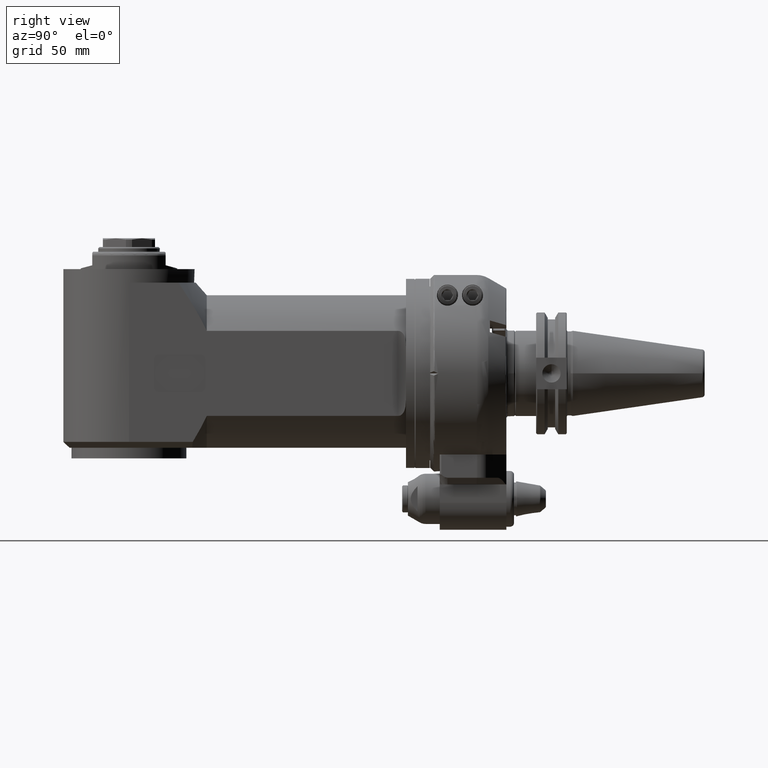
[diagram: clean part render]
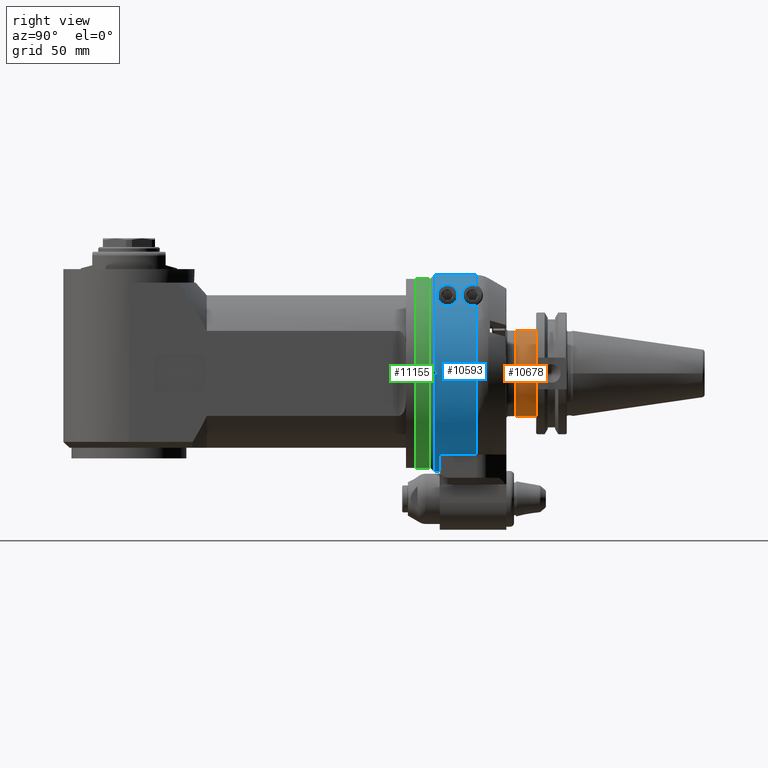
[diagram: same view with three faces highlighted in distinct colors, each labeled with its STEP entity id]
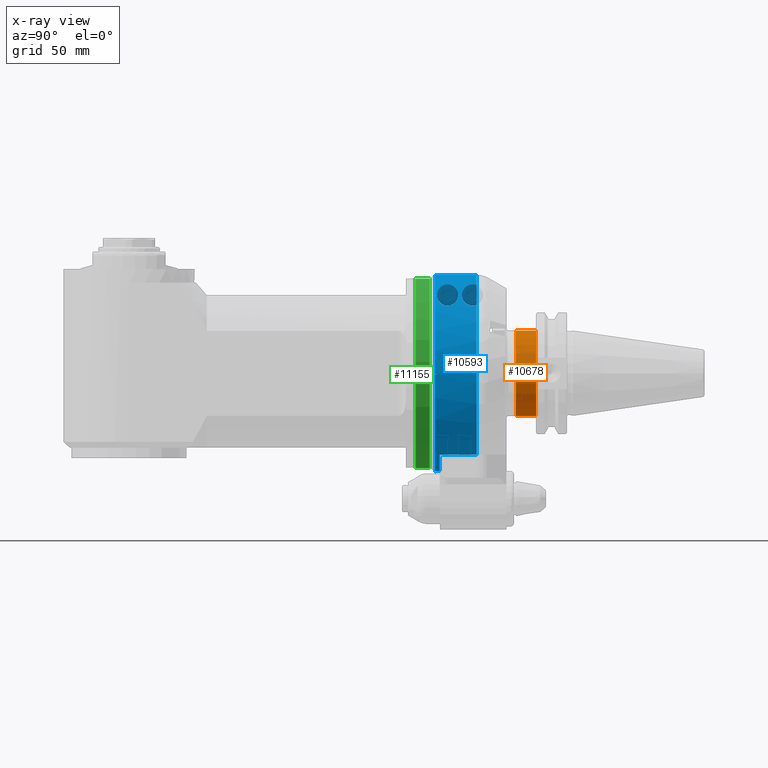
[diagram: x-ray of the same camera — body ghosted, the three highlighted faces saturated]
A machine part, right view with three faces highlighted in distinct colors.
The next image is the same camera in x-ray (body ghosted, the three faces saturated) — at least one of them is partly hidden behind the body in this view.
Their STEP definitions:

[orange] entity #10678 — the highlighted cylindrical surface (bore or boss wall) has radius 22.225 mm, axis along (0, -1, 0).
#951=CYLINDRICAL_SURFACE('',#11902,22.225);
#1212=FACE_OUTER_BOUND('',#1897,.T.);
#1897=EDGE_LOOP('',(#7784,#7785,#7786,#7787,#7788));
#2673=CIRCLE('',#11900,22.225);
#2674=CIRCLE('',#11901,22.225);
#2675=CIRCLE('',#11903,22.225);
#3324=LINE('',#17456,#4027);
#4027=VECTOR('',#13615,22.225);
#4804=VERTEX_POINT('',#17449);
#4805=VERTEX_POINT('',#17450);
#4806=VERTEX_POINT('',#17455);
#5933=EDGE_CURVE('',#4804,#4805,#2673,.T.);
#5935=EDGE_CURVE('',#4805,#4804,#2674,.T.);
#5936=EDGE_CURVE('',#4804,#4806,#3324,.T.);
#5937=EDGE_CURVE('',#4806,#4806,#2675,.T.);
#7784=ORIENTED_EDGE('',*,*,#5933,.F.);
#7785=ORIENTED_EDGE('',*,*,#5936,.T.);
#7786=ORIENTED_EDGE('',*,*,#5937,.F.);
#7787=ORIENTED_EDGE('',*,*,#5936,.F.);
#7788=ORIENTED_EDGE('',*,*,#5935,.F.);
#10678=ADVANCED_FACE('',(#1212),#951,.T.);
#11900=AXIS2_PLACEMENT_3D('',#17451,#13608,#13609);
#11901=AXIS2_PLACEMENT_3D('',#17453,#13611,#13612);
#11902=AXIS2_PLACEMENT_3D('',#17454,#13613,#13614);
#11903=AXIS2_PLACEMENT_3D('',#17457,#13616,#13617);
#13608=DIRECTION('center_axis',(-1.,0.,0.));
#13609=DIRECTION('ref_axis',(0.,-1.,0.));
#13611=DIRECTION('center_axis',(-1.,0.,0.));
#13612=DIRECTION('ref_axis',(0.,-1.,0.));
#13613=DIRECTION('center_axis',(-1.,0.,0.));
#13614=DIRECTION('ref_axis',(0.,1.,0.));
#13615=DIRECTION('',(1.,0.,0.));
#13616=DIRECTION('center_axis',(1.,0.,0.));
#13617=DIRECTION('ref_axis',(0.,1.,0.));
#17449=CARTESIAN_POINT('',(12.5,-22.225,0.));
#17450=CARTESIAN_POINT('',(12.5,22.225,2.72177751110499E-15));
#17451=CARTESIAN_POINT('Origin',(12.5,0.,0.));
#17453=CARTESIAN_POINT('Origin',(12.5,0.,0.));
#17454=CARTESIAN_POINT('Origin',(17.475,0.,0.));
#17455=CARTESIAN_POINT('',(22.95,-22.225,2.72177751110499E-15));
#17456=CARTESIAN_POINT('',(17.475,-22.225,2.72177751110499E-15));
#17457=CARTESIAN_POINT('Origin',(22.95,0.,0.));

[blue] entity #10593 — the highlighted cylindrical surface (partial cylindrical patch) has radius 51 mm, axis along (0, -1, 0).
#256=ELLIPSE('',#11736,144.249783362042,51.);
#257=ELLIPSE('',#11737,144.249783362042,51.);
#309=FACE_BOUND('',#1799,.T.);
#538=B_SPLINE_CURVE_WITH_KNOTS('',3,(#16863,#16864,#16865,#16866,#16867,
#16868),.UNSPECIFIED.,.F.,.F.,(4,2,4),(-0.220144328873593,-0.201175489980687,
0.),.UNSPECIFIED.);
#539=B_SPLINE_CURVE_WITH_KNOTS('',3,(#16869,#16870,#16871,#16872,#16873,
#16874,#16875,#16876,#16877,#16878,#16879,#16880,#16881,#16882,#16883,#16884,
#16885,#16886,#16887,#16888,#16889,#16890,#16891,#16892,#16893,#16894),
 .UNSPECIFIED.,.F.,.F.,(4,2,2,2,2,2,2,2,2,2,2,2,4),(0.,0.201175489980687,
0.402350979961374,0.726790310303929,1.05122964064648,1.44743687444551,1.84364410824453,
2.06341028648597,2.17329337560669,2.28317646472742,2.39305955384814,2.50294264296886,
2.52975105249028),.UNSPECIFIED.);
#540=B_SPLINE_CURVE_WITH_KNOTS('',3,(#16898,#16899,#16900,#16901,#16902,
#16903,#16904,#16905,#16906,#16907,#16908,#16909,#16910,#16911,#16912,#16913,
#16914,#16915,#16916,#16917,#16918,#16919,#16920),.UNSPECIFIED.,.F.,.F.,
(4,2,2,2,2,3,2,2,2,2,4),(-1.23194682408093,-0.835739590281914,-0.439532356482893,
-0.219766178241447,-0.109883089120723,0.,0.109883089120723,0.219766178241446,
0.439532356482894,0.835739590281914,1.23194682408093),.UNSPECIFIED.);
#541=B_SPLINE_CURVE_WITH_KNOTS('',3,(#16921,#16922,#16923,#16924,#16925,
#16926,#16927,#16928,#16929,#16930,#16931,#16932,#16933,#16934,#16935,#16936,
#16937,#16938),.UNSPECIFIED.,.F.,.F.,(4,2,2,2,2,2,2,2,4),(1.23194682408093,
1.55638615442349,1.88082548476604,2.08200097474673,2.28317646472742,2.4843519547081,
2.68552744468879,3.00996677503135,3.3344061053739),.UNSPECIFIED.);
#924=CYLINDRICAL_SURFACE('',#11734,51.);
#1127=FACE_OUTER_BOUND('',#1798,.T.);
#1798=EDGE_LOOP('',(#7371,#7372,#7373,#7374,#7375,#7376,#7377,#7378,#7379,
#7380,#7381,#7382,#7383,#7384));
#1799=EDGE_LOOP('',(#7385,#7386));
#2595=CIRCLE('',#11732,51.);
#2596=CIRCLE('',#11733,51.);
#2597=CIRCLE('',#11735,51.);
#2598=CIRCLE('',#11738,51.);
#2599=CIRCLE('',#11739,51.);
#2600=CIRCLE('',#11740,51.);
#3227=LINE('',#16589,#3930);
#3229=LINE('',#16593,#3932);
#3246=LINE('',#16859,#3949);
#3247=LINE('',#16895,#3950);
#3930=VECTOR('',#13092,19.16025403784);
#3932=VECTOR('',#13094,19.16025403784);
#3949=VECTOR('',#13209,21.74606325158);
#3950=VECTOR('',#13214,21.74606856517);
#4638=VERTEX_POINT('',#16575);
#4639=VERTEX_POINT('',#16588);
#4640=VERTEX_POINT('',#16590);
#4641=VERTEX_POINT('',#16592);
#4684=VERTEX_POINT('',#16815);
#4685=VERTEX_POINT('',#16824);
#4686=VERTEX_POINT('',#16826);
#4687=VERTEX_POINT('',#16849);
#4688=VERTEX_POINT('',#16850);
#4689=VERTEX_POINT('',#16852);
#4690=VERTEX_POINT('',#16854);
#4691=VERTEX_POINT('',#16856);
#4692=VERTEX_POINT('',#16858);
#4693=VERTEX_POINT('',#16862);
#4694=VERTEX_POINT('',#16896);
#4695=VERTEX_POINT('',#16897);
#5685=EDGE_CURVE('',#4639,#4638,#3227,.T.);
#5687=EDGE_CURVE('',#4641,#4640,#3229,.T.);
#5746=EDGE_CURVE('',#4684,#4685,#2595,.T.);
#5748=EDGE_CURVE('',#4686,#4638,#2596,.T.);
#5749=EDGE_CURVE('',#4687,#4688,#2597,.T.);
#5750=EDGE_CURVE('',#4689,#4687,#256,.T.);
#5751=EDGE_CURVE('',#4690,#4689,#257,.T.);
#5752=EDGE_CURVE('',#4691,#4690,#2598,.T.);
#5753=EDGE_CURVE('',#4691,#4692,#3246,.T.);
#5754=EDGE_CURVE('',#4641,#4692,#2599,.T.);
#5755=EDGE_CURVE('',#4639,#4640,#2600,.T.);
#5756=EDGE_CURVE('',#4686,#4693,#538,.T.);
#5757=EDGE_CURVE('',#4693,#4685,#539,.T.);
#5758=EDGE_CURVE('',#4684,#4688,#3247,.T.);
#5759=EDGE_CURVE('',#4694,#4695,#540,.T.);
#5760=EDGE_CURVE('',#4695,#4694,#541,.T.);
#7371=ORIENTED_EDGE('',*,*,#5749,.F.);
#7372=ORIENTED_EDGE('',*,*,#5750,.F.);
#7373=ORIENTED_EDGE('',*,*,#5751,.F.);
#7374=ORIENTED_EDGE('',*,*,#5752,.F.);
#7375=ORIENTED_EDGE('',*,*,#5753,.T.);
#7376=ORIENTED_EDGE('',*,*,#5754,.F.);
#7377=ORIENTED_EDGE('',*,*,#5687,.T.);
#7378=ORIENTED_EDGE('',*,*,#5755,.F.);
#7379=ORIENTED_EDGE('',*,*,#5685,.T.);
#7380=ORIENTED_EDGE('',*,*,#5748,.F.);
#7381=ORIENTED_EDGE('',*,*,#5756,.T.);
#7382=ORIENTED_EDGE('',*,*,#5757,.T.);
#7383=ORIENTED_EDGE('',*,*,#5746,.F.);
#7384=ORIENTED_EDGE('',*,*,#5758,.T.);
#7385=ORIENTED_EDGE('',*,*,#5759,.T.);
#7386=ORIENTED_EDGE('',*,*,#5760,.T.);
#10593=ADVANCED_FACE('',(#1127,#309),#924,.T.);
#11732=AXIS2_PLACEMENT_3D('',#16825,#13195,#13196);
#11733=AXIS2_PLACEMENT_3D('',#16847,#13197,#13198);
#11734=AXIS2_PLACEMENT_3D('',#16848,#13199,#13200);
#11735=AXIS2_PLACEMENT_3D('',#16851,#13201,#13202);
#11736=AXIS2_PLACEMENT_3D('',#16853,#13203,#13204);
#11737=AXIS2_PLACEMENT_3D('',#16855,#13205,#13206);
#11738=AXIS2_PLACEMENT_3D('',#16857,#13207,#13208);
#11739=AXIS2_PLACEMENT_3D('',#16860,#13210,#13211);
#11740=AXIS2_PLACEMENT_3D('',#16861,#13212,#13213);
#13092=DIRECTION('',(-1.,0.,0.));
#13094=DIRECTION('',(1.,0.,0.));
#13195=DIRECTION('center_axis',(-1.,0.,0.));
#13196=DIRECTION('ref_axis',(0.,-0.999567380468613,0.0294117647058804));
#13197=DIRECTION('center_axis',(-1.,0.,0.));
#13198=DIRECTION('ref_axis',(0.,-0.694941301235422,0.719066469693323));
#13199=DIRECTION('center_axis',(1.,0.,0.));
#13200=DIRECTION('ref_axis',(0.,1.,1.4663926773559E-10));
#13201=DIRECTION('center_axis',(1.,0.,0.));
#13202=DIRECTION('ref_axis',(0.,-0.0186331132687895,0.999826388474475));
#13203=DIRECTION('center_axis',(0.353553390593307,0.707106781186515,0.612372435695813));
#13204=DIRECTION('ref_axis',(0.935414346693472,-0.267261241912441,-0.23145502494317));
#13205=DIRECTION('center_axis',(0.353553390593307,-0.707106781186515,0.612372435695813));
#13206=DIRECTION('ref_axis',(-0.935414346693472,-0.267261241912441,0.23145502494317));
#13207=DIRECTION('center_axis',(1.,0.,0.));
#13208=DIRECTION('ref_axis',(0.,1.,0.));
#13209=DIRECTION('',(-1.,-1.462479987387E-11,4.970251645951E-10));
#13210=DIRECTION('center_axis',(-1.,0.,0.));
#13211=DIRECTION('ref_axis',(0.,0.823529411764684,-0.567273574176089));
#13212=DIRECTION('center_axis',(-1.,0.,0.));
#13213=DIRECTION('ref_axis',(0.,1.,0.));
#13214=DIRECTION('',(1.,3.747115976057E-11,1.273469652131E-9));
#16575=CARTESIAN_POINT('',(-36.16025403784,42.,28.93095228298));
#16588=CARTESIAN_POINT('',(-17.,42.,28.93095228298));
#16589=CARTESIAN_POINT('',(-17.,42.,28.93095228298));
#16590=CARTESIAN_POINT('',(-17.,42.,-28.93095228298));
#16592=CARTESIAN_POINT('',(-36.16025403784,42.,-28.93095228298));
#16593=CARTESIAN_POINT('',(-36.16025403784,42.,-28.93095228298));
#16815=CARTESIAN_POINT('',(-36.16025403784,-50.9779364046901,1.49999997309681));
#16824=CARTESIAN_POINT('',(-36.16025403784,-45.55799420242,22.92311419183));
#16825=CARTESIAN_POINT('Origin',(-36.16025403784,0.,0.));
#16826=CARTESIAN_POINT('',(-36.16025403784,-35.44200636301,36.67238995436));
#16847=CARTESIAN_POINT('Origin',(-36.16025403784,0.,0.));
#16848=CARTESIAN_POINT('Origin',(-43.,0.,0.));
#16849=CARTESIAN_POINT('',(-14.41421356236,-0.9502887767138,50.9911458122));
#16850=CARTESIAN_POINT('',(-14.4142135553488,-50.9779364042926,1.49999998660699));
#16851=CARTESIAN_POINT('Origin',(-14.41421356237,0.,0.));
#16852=CARTESIAN_POINT('',(-16.33012701892,0.,51.));
#16853=CARTESIAN_POINT('Origin',(72.0044641670873,0.,0.));
#16854=CARTESIAN_POINT('',(-14.41421356237,0.9502887767115,50.9911458122));
#16855=CARTESIAN_POINT('Origin',(72.0044641670895,0.,0.));
#16856=CARTESIAN_POINT('',(-14.4142135548435,-50.9779364043204,-1.49999998564002));
#16857=CARTESIAN_POINT('Origin',(-14.41421356237,0.,0.));
#16858=CARTESIAN_POINT('',(-36.1602540534303,-50.9779364044794,-1.49999998023586));
#16859=CARTESIAN_POINT('',(-14.41420614677,-50.97793640474,-1.49999997128));
#16860=CARTESIAN_POINT('Origin',(-36.16025403784,0.,0.));
#16861=CARTESIAN_POINT('Origin',(-17.,0.,0.));
#16862=CARTESIAN_POINT('',(-34.,-35.0000002827,37.094473715245));
#16863=CARTESIAN_POINT('Ctrl Pts',(-36.1602540378615,-35.4420063629821,
36.672389954383));
#16864=CARTESIAN_POINT('Ctrl Pts',(-36.1030307589119,-35.4175664721138,
36.6960098703128));
#16865=CARTESIAN_POINT('Ctrl Pts',(-36.0451285760376,-35.3939854762316,
36.7187524665262));
#16866=CARTESIAN_POINT('Ctrl Pts',(-35.365962882206,-35.1309085087689,36.9720249281091));
#16867=CARTESIAN_POINT('Ctrl Pts',(-34.6705849666023,-35.0000002827,37.094473715245));
#16868=CARTESIAN_POINT('Ctrl Pts',(-34.,-35.0000002827,37.094473715245));
#16869=CARTESIAN_POINT('Ctrl Pts',(-34.,-35.0000002827,37.094473715245));
#16870=CARTESIAN_POINT('Ctrl Pts',(-33.3294150333977,-35.0000002827,37.094473715245));
#16871=CARTESIAN_POINT('Ctrl Pts',(-32.634037117794,-35.1309085087689,36.9720249281091));
#16872=CARTESIAN_POINT('Ctrl Pts',(-31.3927469884163,-35.611726144206,36.509126684777));
#16873=CARTESIAN_POINT('Ctrl Pts',(-30.8460087579151,-35.9595700839234,
36.1687494919773));
#16874=CARTESIAN_POINT('Ctrl Pts',(-29.735791859391,-36.9109847334653,35.2033968586434));
#16875=CARTESIAN_POINT('Ctrl Pts',(-29.2408985110096,-37.6305186458188,
34.4409934800641));
#16876=CARTESIAN_POINT('Ctrl Pts',(-28.6228361137413,-39.0967633186736,
32.7670730175023));
#16877=CARTESIAN_POINT('Ctrl Pts',(-28.5,-39.8427250661917,31.8547771083538));
#16878=CARTESIAN_POINT('Ctrl Pts',(-28.5,-41.3026686740521,29.9471832487812));
#16879=CARTESIAN_POINT('Ctrl Pts',(-28.6813594560049,-42.1275628033903,
28.778013547493));
#16880=CARTESIAN_POINT('Ctrl Pts',(-29.3971650946717,-43.6226298537565,
26.456979520871));
#16881=CARTESIAN_POINT('Ctrl Pts',(-29.923954492565,-44.2943690865695,25.3037695427295));
#16882=CARTESIAN_POINT('Ctrl Pts',(-30.9924338611569,-45.1302050030023,
23.7624895598246));
#16883=CARTESIAN_POINT('Ctrl Pts',(-31.474810450432,-45.4238805293447,23.1928172782629));
#16884=CARTESIAN_POINT('Ctrl Pts',(-32.3289480905375,-45.7488459255632,
22.5411184273514));
#16885=CARTESIAN_POINT('Ctrl Pts',(-32.6350884897769,-45.8382767855729,
22.3578474169696));
#16886=CARTESIAN_POINT('Ctrl Pts',(-33.2875037271628,-45.9637780827712,
22.0986788135919));
#16887=CARTESIAN_POINT('Ctrl Pts',(-33.6337230362643,-46.0000002827,22.0227149550549));
#16888=CARTESIAN_POINT('Ctrl Pts',(-34.3662769637357,-46.0000002827,22.0227149550549));
#16889=CARTESIAN_POINT('Ctrl Pts',(-34.7124962728372,-45.9637780827712,
22.0986788135919));
#16890=CARTESIAN_POINT('Ctrl Pts',(-35.3649115102231,-45.8382767855729,
22.3578474169696));
#16891=CARTESIAN_POINT('Ctrl Pts',(-35.6710519094625,-45.7488459255632,
22.5411184273514));
#16892=CARTESIAN_POINT('Ctrl Pts',(-36.0252263780028,-45.6140966286168,
22.8113501597235));
#16893=CARTESIAN_POINT('Ctrl Pts',(-36.0933991389679,-45.5865477292858,
22.8663661688419));
#16894=CARTESIAN_POINT('Ctrl Pts',(-36.1602540378421,-45.5579942024262,
22.9231141918306));
#16895=CARTESIAN_POINT('',(-36.16027520978,-50.9779364055,1.499999945521));
#16896=CARTESIAN_POINT('',(-15.5,-40.5000002827,30.99596711028));
#16897=CARTESIAN_POINT('',(-26.5,-40.5000002827,30.9959671102758));
#16898=CARTESIAN_POINT('Ctrl Pts',(-15.5,-40.5000002827,30.9959671102758));
#16899=CARTESIAN_POINT('Ctrl Pts',(-15.5,-41.3026686740521,29.9471832487812));
#16900=CARTESIAN_POINT('Ctrl Pts',(-15.6813594560049,-42.1275628033903,
28.778013547493));
#16901=CARTESIAN_POINT('Ctrl Pts',(-16.3971650946717,-43.6226298537565,
26.456979520871));
#16902=CARTESIAN_POINT('Ctrl Pts',(-16.923954492565,-44.2943690865695,25.3037695427295));
#16903=CARTESIAN_POINT('Ctrl Pts',(-17.9924338611569,-45.1302050030023,
23.7624895598246));
#16904=CARTESIAN_POINT('Ctrl Pts',(-18.474810450432,-45.4238805293447,23.1928172782629));
#16905=CARTESIAN_POINT('Ctrl Pts',(-19.3289480905375,-45.7488459255632,
22.5411184273514));
#16906=CARTESIAN_POINT('Ctrl Pts',(-19.6350884897769,-45.8382767855729,
22.3578474169696));
#16907=CARTESIAN_POINT('Ctrl Pts',(-20.2875037271628,-45.9637780827712,
22.0986788135919));
#16908=CARTESIAN_POINT('Ctrl Pts',(-20.6337230362643,-46.0000002827,22.0227149550549));
#16909=CARTESIAN_POINT('Ctrl Pts',(-21.,-46.0000002827,22.0227149550549));
#16910=CARTESIAN_POINT('Ctrl Pts',(-21.3662769637357,-46.0000002827,22.0227149550549));
#16911=CARTESIAN_POINT('Ctrl Pts',(-21.7124962728372,-45.9637780827712,
22.0986788135919));
#16912=CARTESIAN_POINT('Ctrl Pts',(-22.3649115102231,-45.8382767855729,
22.3578474169696));
#16913=CARTESIAN_POINT('Ctrl Pts',(-22.6710519094625,-45.7488459255632,
22.5411184273515));
#16914=CARTESIAN_POINT('Ctrl Pts',(-23.525189549568,-45.4238805293447,23.1928172782629));
#16915=CARTESIAN_POINT('Ctrl Pts',(-24.0075661388431,-45.1302050030023,
23.7624895598246));
#16916=CARTESIAN_POINT('Ctrl Pts',(-25.076045507435,-44.2943690865695,25.3037695427295));
#16917=CARTESIAN_POINT('Ctrl Pts',(-25.6028349053283,-43.6226298537565,
26.456979520871));
#16918=CARTESIAN_POINT('Ctrl Pts',(-26.3186405439951,-42.1275628033903,
28.778013547493));
#16919=CARTESIAN_POINT('Ctrl Pts',(-26.5,-41.3026686740521,29.9471832487812));
#16920=CARTESIAN_POINT('Ctrl Pts',(-26.5,-40.5000002827,30.9959671102758));
#16921=CARTESIAN_POINT('Ctrl Pts',(-26.5,-40.5000002827,30.9959671102758));
#16922=CARTESIAN_POINT('Ctrl Pts',(-26.5,-39.8427250661917,31.8547771083538));
#16923=CARTESIAN_POINT('Ctrl Pts',(-26.3771638862587,-39.0967633186736,
32.7670730175023));
#16924=CARTESIAN_POINT('Ctrl Pts',(-25.7591014889904,-37.6305186458188,
34.4409934800641));
#16925=CARTESIAN_POINT('Ctrl Pts',(-25.264208140609,-36.9109847334653,35.2033968586434));
#16926=CARTESIAN_POINT('Ctrl Pts',(-24.153991242085,-35.9595700839234,36.1687494919773));
#16927=CARTESIAN_POINT('Ctrl Pts',(-23.6072530115837,-35.611726144206,36.509126684777));
#16928=CARTESIAN_POINT('Ctrl Pts',(-22.365962882206,-35.1309085087689,36.9720249281091));
#16929=CARTESIAN_POINT('Ctrl Pts',(-21.6705849666023,-35.0000002827,37.094473715245));
#16930=CARTESIAN_POINT('Ctrl Pts',(-20.3294150333977,-35.0000002827,37.094473715245));
#16931=CARTESIAN_POINT('Ctrl Pts',(-19.634037117794,-35.1309085087689,36.9720249281091));
#16932=CARTESIAN_POINT('Ctrl Pts',(-18.3927469884163,-35.611726144206,36.509126684777));
#16933=CARTESIAN_POINT('Ctrl Pts',(-17.8460087579151,-35.9595700839234,
36.1687494919773));
#16934=CARTESIAN_POINT('Ctrl Pts',(-16.735791859391,-36.9109847334653,35.2033968586434));
#16935=CARTESIAN_POINT('Ctrl Pts',(-16.2408985110096,-37.6305186458188,
34.4409934800641));
#16936=CARTESIAN_POINT('Ctrl Pts',(-15.6228361137413,-39.0967633186736,
32.7670730175023));
#16937=CARTESIAN_POINT('Ctrl Pts',(-15.5,-39.8427250661916,31.8547771083538));
#16938=CARTESIAN_POINT('Ctrl Pts',(-15.5,-40.5000002827,30.9959671102758));

[green] entity #11155 — the highlighted cylindrical surface (bore or boss wall) has radius 49 mm, axis along (-0, 1, -0).
#1085=CYLINDRICAL_SURFACE('',#12902,49.);
#1689=FACE_OUTER_BOUND('',#2463,.T.);
#2463=EDGE_LOOP('',(#10046,#10047,#10048,#10049));
#3150=CIRCLE('',#12901,49.);
#3151=CIRCLE('',#12903,49.);
#3851=LINE('',#50168,#4554);
#4554=VECTOR('',#16144,49.);
#5562=VERTEX_POINT('',#50162);
#5563=VERTEX_POINT('',#50166);
#7078=EDGE_CURVE('',#5562,#5562,#3150,.T.);
#7080=EDGE_CURVE('',#5563,#5563,#3151,.T.);
#7081=EDGE_CURVE('',#5563,#5562,#3851,.T.);
#10046=ORIENTED_EDGE('',*,*,#7080,.F.);
#10047=ORIENTED_EDGE('',*,*,#7081,.T.);
#10048=ORIENTED_EDGE('',*,*,#7078,.F.);
#10049=ORIENTED_EDGE('',*,*,#7081,.F.);
#11155=ADVANCED_FACE('',(#1689),#1085,.T.);
#12901=AXIS2_PLACEMENT_3D('',#50163,#16137,#16138);
#12902=AXIS2_PLACEMENT_3D('',#50165,#16140,#16141);
#12903=AXIS2_PLACEMENT_3D('',#50167,#16142,#16143);
#16137=DIRECTION('center_axis',(0.,-1.,0.));
#16138=DIRECTION('ref_axis',(-1.,0.,0.));
#16140=DIRECTION('center_axis',(0.,1.,0.));
#16141=DIRECTION('ref_axis',(-1.,0.,0.));
#16142=DIRECTION('center_axis',(0.,1.,0.));
#16143=DIRECTION('ref_axis',(-1.,0.,0.));
#16144=DIRECTION('',(0.,-1.,0.));
#50162=CARTESIAN_POINT('',(38.16004178792,45.5,0.));
#50163=CARTESIAN_POINT('Origin',(-10.83995821208,45.5,0.));
#50165=CARTESIAN_POINT('Origin',(-10.83995821208,48.9,0.));
#50166=CARTESIAN_POINT('',(38.16004178792,52.8,1.201679903017E-14));
#50167=CARTESIAN_POINT('Origin',(-10.83995821208,52.8,0.));
#50168=CARTESIAN_POINT('',(38.16004178792,48.9,-6.00076931582203E-15));